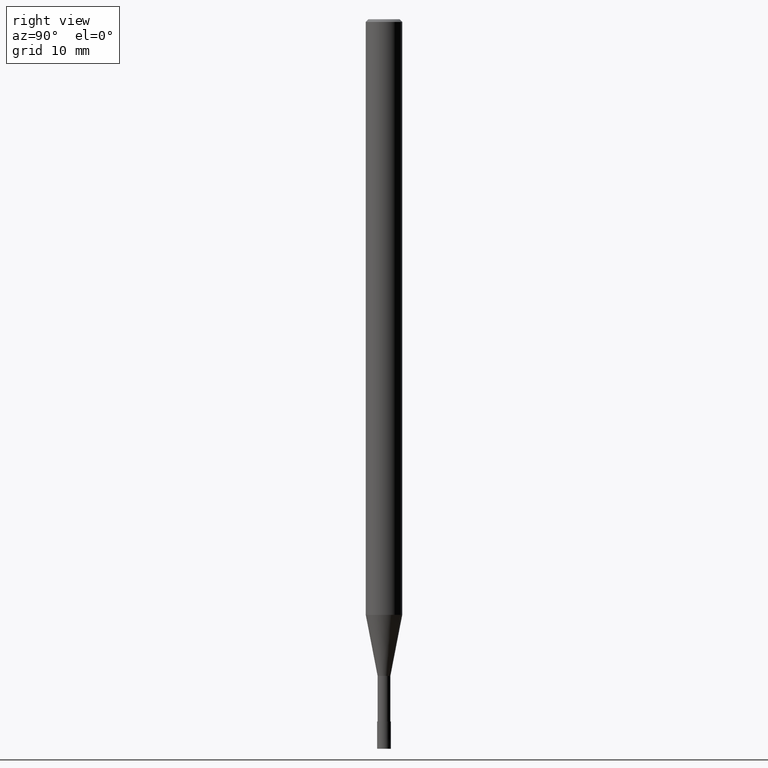
[diagram: clean part render]
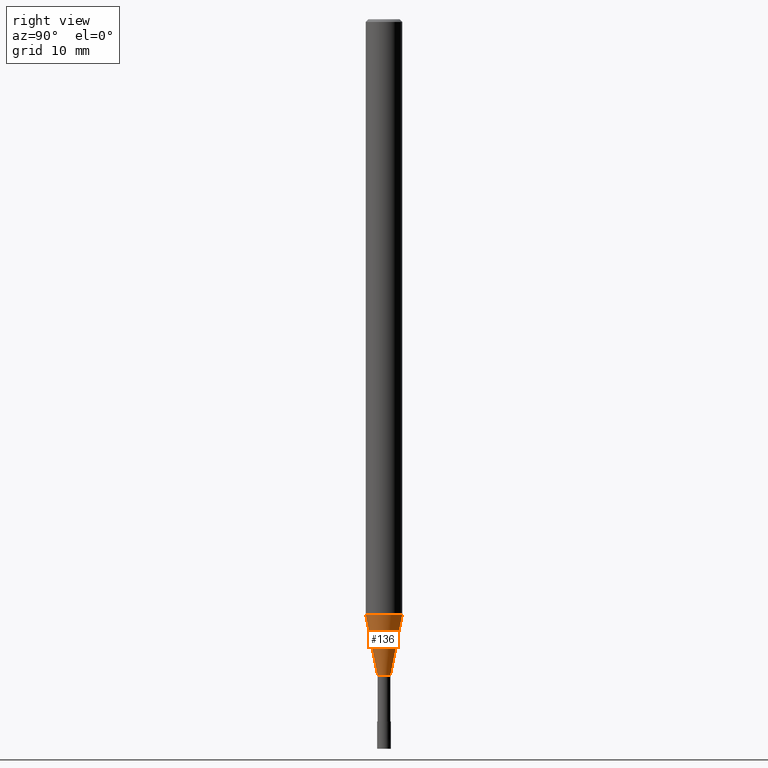
[diagram: same view with one face highlighted and labeled with its STEP entity id]
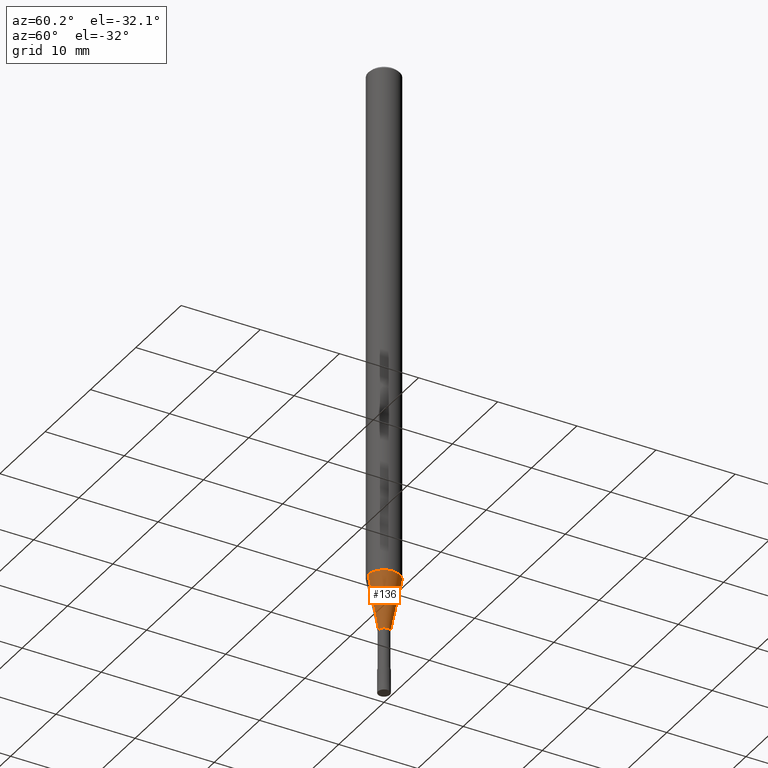
[diagram: same view with one face highlighted and labeled with its STEP entity id]
A machine part, right view. The second image highlights one B-rep face of the part: STEP entity #136.
A second angle (auxiliary view) of the same face is appended — the face is thin or edge-on in the first view.
In plain terms, the highlighted conical surface has half-angle 11 deg.
Its self-contained STEP definition (entity closure, byte-faithful):
#110=VERTEX_POINT('',#250);
#112=EDGE_CURVE('',#162,#164,#252,.T.);
#122=EDGE_CURVE('',#172,#164,#264,.T.);
#136=ADVANCED_FACE('',(#280),#281,.T.);
#162=VERTEX_POINT('',#313);
#164=VERTEX_POINT('',#315);
#166=EDGE_CURVE('',#110,#172,#317,.T.);
#172=VERTEX_POINT('',#323);
#174=EDGE_CURVE('',#162,#110,#325,.T.);
#250=CARTESIAN_POINT('',(0.0,0.69995,-72.0));
#252=CIRCLE('',#404,1.99995);
#264=LINE('',#420,#421);
#280=FACE_OUTER_BOUND('',#440,.T.);
#281=CONICAL_SURFACE('',#441,1.34995,0.191983983430966);
#313=CARTESIAN_POINT('',(0.0,1.99995,-65.312));
#315=CARTESIAN_POINT('',(2.44915147732706E-016,-1.99995,-65.312));
#317=CIRCLE('',#482,0.69995);
#323=CARTESIAN_POINT('',(8.57163217357973E-017,-0.69995,-72.0));
#325=LINE('',#492,#493);
#404=AXIS2_PLACEMENT_3D('',#579,#580,#581);
#420=CARTESIAN_POINT('',(1.65315734734252E-016,-1.34995,-68.656));
#421=VECTOR('',#594,1.0);
#440=EDGE_LOOP('',(#614,#615,#616,#617));
#441=AXIS2_PLACEMENT_3D('',#618,#619,#620);
#482=AXIS2_PLACEMENT_3D('',#670,#671,#672);
#492=CARTESIAN_POINT('',(-1.65315734734252E-016,1.34995,-68.656));
#493=VECTOR('',#676,1.0);
#579=CARTESIAN_POINT('',(0.0,0.0,-65.312));
#580=DIRECTION('',(0.0,0.0,-1.0));
#581=DIRECTION('',(0.0,1.0,0.0));
#594=DIRECTION('',(2.33663222250515E-017,-0.19080680213783,0.981627609767541));
#614=ORIENTED_EDGE('',*,*,#174,.F.);
#615=ORIENTED_EDGE('',*,*,#112,.T.);
#616=ORIENTED_EDGE('',*,*,#122,.F.);
#617=ORIENTED_EDGE('',*,*,#166,.F.);
#618=CARTESIAN_POINT('',(0.0,0.0,-68.656));
#619=DIRECTION('',(-0.0,-0.0,1.0));
#620=DIRECTION('',(0.0,1.0,0.0));
#670=CARTESIAN_POINT('',(0.0,0.0,-72.0));
#671=DIRECTION('',(0.0,0.0,-1.0));
#672=DIRECTION('',(0.0,1.0,0.0));
#676=DIRECTION('',(2.33663222250515E-017,-0.19080680213783,-0.981627609767541));